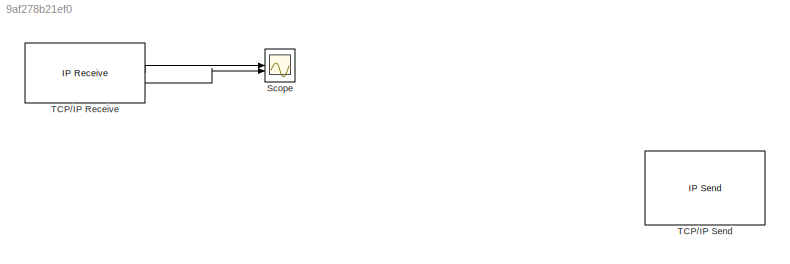
MODEL slx_9af278b21ef0
KIND model
CONFIG AbsTol = auto
CONFIG EnableMultiTasking = on
CONFIG FixedStep = auto
CONFIG MaxStep = auto
CONFIG MinStep = auto
CONFIG RelTol = 1e-3
CONFIG SampleTimeConstraint = Unconstrained
CONFIG SolverName = FixedStepAuto
CONFIG StartTime = 0.0
CONFIG StopTime = inf
BLOCK [Scope] Scope
  Floating = off
  GraphicalSettings = {"GraphicalSettings":{"LegacySettings":true,"Style":{"Style":{"PlotType":"Auto"}}}}
  NumInputPorts = 2
  ScopeFrameLocation = window
  WasSavedAsWebScope = on
  WindowPosition = [560.000000,315.000000,560.000000,420.000000,]
BLOCK [Reference] TCP//IP Receive  REF=raspberrypiNetworklib/TCP//IP Receive
  SourceBlock = raspberrypiNetworklib/TCP//IP Receive
  SourceType = codertarget.raspi.internal.RaspiTCPReceive
BLOCK [Reference] TCP//IP Send  REF=raspberrypiNetworklib/TCP//IP Send
  SourceBlock = raspberrypiNetworklib/TCP//IP Send
  SourceType = codertarget.raspi.internal.RaspiTCPSend
LINE TCP//IP Receive:1 -> Scope:1
LINE TCP//IP Receive:2 -> Scope:2
